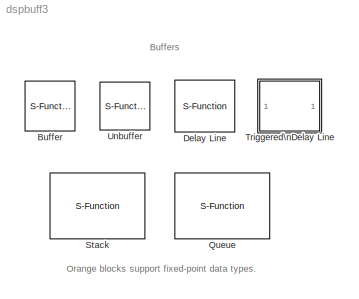
MODEL dspbuff3
KIND library
BLOCK [S-Function] Buffer
  CopyFcn = dspfixptcopycallback
  FunctionName = sdsprebuff2
  MaskCallbackString = ||
  MaskDescription = Convert scalar samples to a frame output at a lower sample rate.  You can also convert a frame to a smaller or larger size with optional overlap.\nFor calculation of sample delay, see the rebuffer_delay function.
  MaskDisplay = plot(x,y)
  MaskEnableString = on,on,on
  MaskHelp = web(dspbhelp);\n
  MaskIconFrame = on
  MaskIconOpaque = on
  MaskIconRotate = none
  MaskIconUnits = autoscale
  MaskInitialization = [x,y] = dspblkbuff('icon');
  MaskPromptString = Output buffer size (per channel):|Buffer overlap:|Initial conditions:
  MaskSelfModifiable = on
  MaskStyleString = edit,edit,edit
  MaskToolTipString = on,on,on
  MaskTunableValueString = off,off,off
  MaskType = Buffer
  MaskValueString = 64|0|0
  MaskVarAliasString = ,,
  MaskVariables = N=@1;V=@2;ic=@3;
  MaskVisibilityString = on,on,on
  Parameters = N,V,ic
  Ports = [1, 1]
BLOCK [S-Function] Delay Line
  CopyFcn = dspfixptcopycallback
  FunctionName = sdspsreg2
  MaskCallbackString = ||
  MaskDescription = Shift out delay line contents and store input data into start of delay line.
  MaskDisplay = disp('Delay\\nLine');
  MaskEnableString = on,on,on
  MaskHelp = web(dspbhelp);\n
  MaskIconFrame = on
  MaskIconOpaque = on
  MaskIconRotate = none
  MaskIconUnits = autoscale
  MaskPromptString = Delay line size:|Initial conditions:|Allow directfeedthrough
  MaskSelfModifiable = on
  MaskStyleString = edit,edit,checkbox
  MaskToolTipString = on,on,on
  MaskTunableValueString = off,off,off
  MaskType = Delay Line
  MaskValueString = 64|0|off
  MaskVarAliasString = ,,
  MaskVariables = siz=@1;ic=@2;directfeed=@3;
  MaskVisibilityString = on,on,on
  Parameters = siz,ic,directfeed
  Ports = [1, 1]
BLOCK [S-Function] Queue
  CopyFcn = dspfixptcopycallback
  FunctionName = sdspstacknqueue
  MaskCallbackString = ||||||||
  MaskDescription = Implements a queue, or \"First In, First Out\" (FIFO) register.
  MaskDisplay = disp('Queue');\n\nport_label('input',si(1).port, si(1).txt);\nport_label('input',si(2).port, si(2).txt);\nport_label('input',si(3).port, si(3).txt);\nport_label('input',si(4).port, si(4).txt);\n\nport_label('output',so(1).port, so(1).txt);\nport_label('output',so(2).port, so(2).txt);\nport_label('output',so(3).port, so(3).txt);\nport_label('output',so(4).port, so(4).txt);\n
  MaskEnableString = on,on,on,on,on,on,on,on,on
  MaskHelp = web(dspbhelp);\n
  MaskIconFrame = on
  MaskIconOpaque = on
  MaskIconRotate = port
  MaskIconUnits = normalized
  MaskInitialization = [si,so] = dspblkstack('icon', clr,eso,fso,nso);
  MaskPromptString = Register size:|Trigger type:|Push onto full register:|Pop empty register:|Empty register output|Full register output|Output number of register entries|Clear input|Clear output port on reset
  MaskSelfModifiable = on
  MaskStyleString = edit,popup(Rising edge|Falling edge|Either edge|Non-zero sample),popup(Dynamic reallocation|Ignore|Warning|Error),popup(Ignore|Warning|Error),checkbox,checkbox,checkbox,checkbox,checkbox
  MaskToolTipString = on,on,on,on,on,on,on,on,on
  MaskTunableValueString = off,on,off,on,off,off,off,off,on
  MaskType = Queue
  MaskValueString = 8|Rising edge|Dynamic reallocation|Warning|off|off|off|off|off
  MaskVarAliasString = ,,,,,,,,
  MaskVariables = depth=@1;trigger=@2;overflow=@3;pes=@4;eso=@5;fso=@6;nso=@7;clr=@8;clrOutport=@9;
  MaskVisibilityString = on,on,on,on,on,on,on,on,on
  Parameters = trigger,depth,overflow,pes,eso,fso,nso,clr,clrOutport,1
  Ports = [3, 1]
BLOCK [S-Function] Stack
  CopyFcn = dspfixptcopycallback
  FunctionName = sdspstacknqueue
  MaskCallbackString = ||||||||
  MaskDescription = Implements a stack, or \"Last In, First Out\" (LIFO) register.
  MaskDisplay = disp('Stack');\n\nport_label('input',si(1).port, si(1).txt);\nport_label('input',si(2).port, si(2).txt);\nport_label('input',si(3).port, si(3).txt);\nport_label('input',si(4).port, si(4).txt);\n\nport_label('output',so(1).port, so(1).txt);\nport_label('output',so(2).port, so(2).txt);\nport_label('output',so(3).port, so(3).txt);\nport_label('output',so(4).port, so(4).txt);\n
  MaskEnableString = on,on,on,on,on,on,on,on,on
  MaskHelp = web(dspbhelp);\n
  MaskIconFrame = on
  MaskIconOpaque = on
  MaskIconRotate = port
  MaskIconUnits = normalized
  MaskInitialization = [si,so] = dspblkstack('icon', clr,eso,fso,nso);\n
  MaskPromptString = Stack depth:|Trigger type:|Push full stack:|Pop empty stack:|Empty stack output|Full stack output|Output number of stack entries|Clear input|Clear output port on reset
  MaskSelfModifiable = on
  MaskStyleString = edit,popup(Rising edge|Falling edge|Either edge|Non-zero sample),popup(Dynamic reallocation|Ignore|Warning|Error),popup(Ignore|Warning|Error),checkbox,checkbox,checkbox,checkbox,checkbox
  MaskToolTipString = on,on,on,on,on,on,on,on,on
  MaskTunableValueString = off,on,off,on,off,off,off,off,on
  MaskType = Stack
  MaskValueString = 8|Rising edge|Dynamic reallocation|Warning|off|off|off|off|off
  MaskVarAliasString = ,,,,,,,,
  MaskVariables = depth=@1;trigger=@2;overflow=@3;pes=@4;eso=@5;fso=@6;nso=@7;clr=@8;clrOutport=@9;
  MaskVisibilityString = on,on,on,on,on,on,on,on,on
  Parameters = trigger,depth,overflow,pes,eso,fso,nso,clr,clrOutport,0
  Ports = [3, 1]
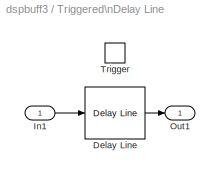
BLOCK [SubSystem] Triggered\nDelay Line
  CopyFcn = dspfixptcopycallback
  MaskCallbackString = ||
  MaskDescription = Shift out delay line contents and store input data into start of delay line when trigger event occurs.
  MaskDisplay = disp('Delay\\nLine');
  MaskEnableString = on,on,on
  MaskHelp = web(dspbhelp);\n
  MaskIconFrame = on
  MaskIconOpaque = off
  MaskIconRotate = none
  MaskIconUnits = autoscale
  MaskInitialization = switch trig\ncase 1, s='rising';\ncase 2, s='falling';\ncase 3, s='either';\nend\nset_param([gcb '/Trigger'],'triggertype',s);\n
  MaskPromptString = Trigger type:|Delay line size:|Initial conditions:
  MaskSelfModifiable = on
  MaskStyleString = popup(Rising edge|Falling edge|Either edge),edit,edit
  MaskToolTipString = on,on,on
  MaskTunableValueString = off,off,off
  MaskType = Triggered Delay Line
  MaskValueString = Rising edge|64|0
  MaskVarAliasString = ,,
  MaskVariables = trig=@1;siz=@2;ic=@3;
  MaskVisibilityString = on,on,on
  Ports = [1, 1, 0, 1]
  TreatAsAtomicUnit = on
BLOCK [Reference] Triggered\nDelay Line/Delay Line  REF=dspbuff3/Delay Line
  Ports = [1, 1]
  SourceBlock = dspbuff3/Delay Line
  SourceType = Delay Line
  directfeed = off
  ic = ic
  siz = siz
BLOCK [Inport] Triggered\nDelay Line/In1
BLOCK [Outport] Triggered\nDelay Line/Out1
  InitialOutput = ic
BLOCK [TriggerPort] Triggered\nDelay Line/Trigger
  Ports = []
  ZeroCross = off
BLOCK [S-Function] Unbuffer
  CopyFcn = dspfixptcopycallback
  FunctionName = sdsprebuff2
  MaskDescription = Convert a frame to scalar samples output at a higher sample rate.
  MaskDisplay = plot(0,0,100,100,[62 68 68 72 68 68],[24 24 26 24 22 24],[36 36 56 49 56 49],[32 24 24 16 24 32],[20 52 52 20 20],[88 88 36 36 88],[28 44],[80 80],[28 44],[72 72],[28 44],[64 64],[28 44],[56 56],[28 44],[48 48],[72 76 76 80 76 76],[24 24 26 24 22 24],[80 84 84 88 84 84],[24 24 26 24 22 24],[],[],[],[],[88 88 92],[24 24 24])
  MaskEnableString = on
  MaskHelp = web(dspbhelp);
  MaskIconFrame = on
  MaskIconOpaque = on
  MaskIconRotate = none
  MaskIconUnits = autoscale
  MaskPromptString = Initial conditions:
  MaskSelfModifiable = on
  MaskStyleString = edit
  MaskToolTipString = on
  MaskTunableValueString = off
  MaskType = Unbuffer
  MaskValueString = 0
  MaskVariables = ic=@1;
  MaskVisibilityString = on
  Parameters = 1,0,ic
  Ports = [1, 1]
ANNOTATION (root): Buffers
ANNOTATION (root): Orange blocks support fixed-point data types.
LINE Triggered\nDelay Line/Delay Line:1 -> Triggered\nDelay Line/Out1:1
LINE Triggered\nDelay Line/In1:1 -> Triggered\nDelay Line/Delay Line:1
